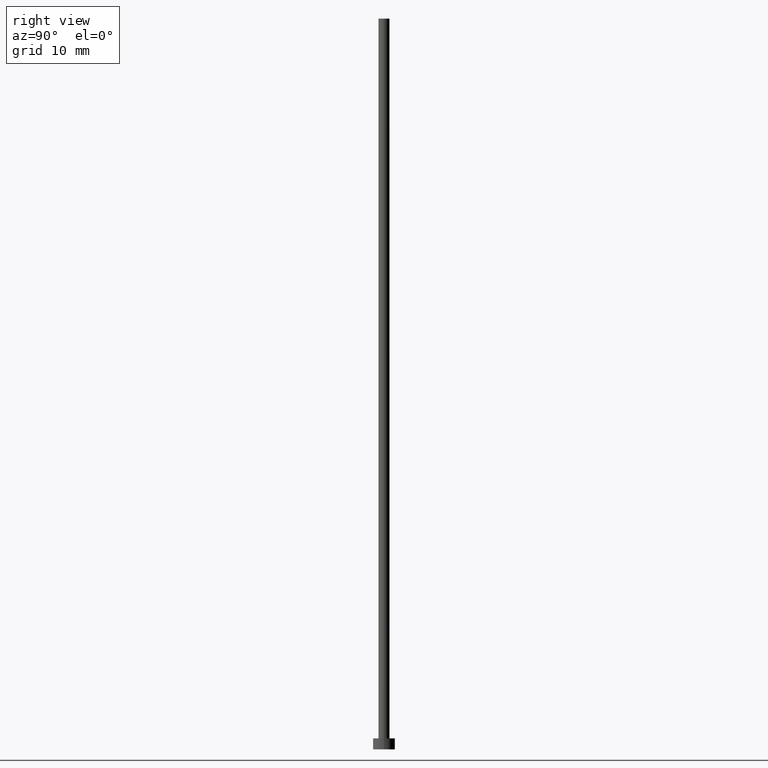
[diagram: clean part render]
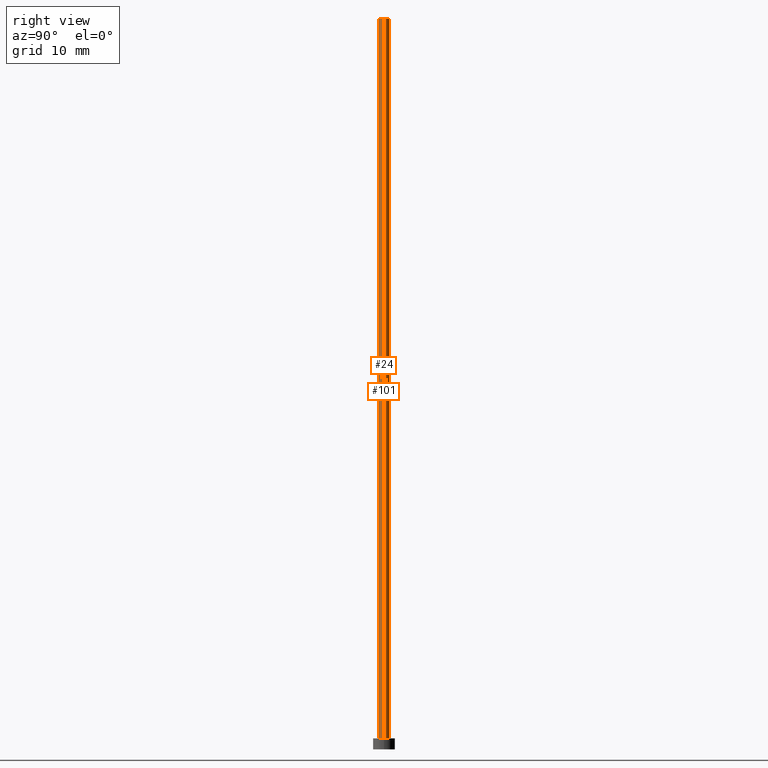
[diagram: same view with one multi-face feature highlighted, each face labeled with its STEP entity id]
A machine part, right view. The highlighted faces form ONE feature: a constant-radius fillet chain: 2 tangent blend faces with common blend radius 0.75 mm. The faces share edges in the B-rep.
Their STEP definitions:
[1] entity #24 (Cylinder):
#24 = ADVANCED_FACE ( 'NONE', ( #45 ), #26, .T. ) ;
#26 = CYLINDRICAL_SURFACE ( 'NONE', #188, 0.7500000000000001110 ) ;
#28 = DIRECTION ( 'NONE',  ( -0.000000000000000000, -0.000000000000000000, -1.000000000000000000 ) ) ;
#31 = DIRECTION ( 'NONE',  ( 1.000000000000000000, 0.000000000000000000, 0.000000000000000000 ) ) ;
#37 = VERTEX_POINT ( 'NONE', #178 ) ;
#45 = FACE_OUTER_BOUND ( 'NONE', #114, .T. ) ;
#46 = CARTESIAN_POINT ( 'NONE',  ( 0.000000000000000000, 0.000000000000000000, 100.0000000000000000 ) ) ;
#59 = ORIENTED_EDGE ( 'NONE', *, *, #168, .T. ) ;
#78 = CARTESIAN_POINT ( 'NONE',  ( -0.7500000000000001110, 0.000000000000000000, 100.0000000000000000 ) ) ;
#80 = DIRECTION ( 'NONE',  ( -0.000000000000000000, -0.000000000000000000, -1.000000000000000000 ) ) ;
#84 = DIRECTION ( 'NONE',  ( -0.000000000000000000, -0.000000000000000000, -1.000000000000000000 ) ) ;
#89 = CIRCLE ( 'NONE', #195, 0.7500000000000001110 ) ;
#100 = VECTOR ( 'NONE', #80, 1000.000000000000000 ) ;
#107 = CARTESIAN_POINT ( 'NONE',  ( 0.7500000000000001110, 9.184850993605150903E-17, 100.0000000000000000 ) ) ;
#109 = ORIENTED_EDGE ( 'NONE', *, *, #144, .T. ) ;
#114 = EDGE_LOOP ( 'NONE', ( #135, #220, #59, #109 ) ) ;
#116 = CARTESIAN_POINT ( 'NONE',  ( 0.000000000000000000, 0.000000000000000000, 1.500000000000000000 ) ) ;
#126 = DIRECTION ( 'NONE',  ( -1.000000000000000000, 0.000000000000000000, 0.000000000000000000 ) ) ;
#129 = LINE ( 'NONE', #107, #229 ) ;
#135 = ORIENTED_EDGE ( 'NONE', *, *, #174, .F. ) ;
#136 = DIRECTION ( 'NONE',  ( 0.000000000000000000, 0.000000000000000000, 1.000000000000000000 ) ) ;
#143 = VERTEX_POINT ( 'NONE', #179 ) ;
#144 = EDGE_CURVE ( 'NONE', #143, #163, #89, .T. ) ;
#146 = AXIS2_PLACEMENT_3D ( 'NONE', #238, #239, #31 ) ;
#162 = CARTESIAN_POINT ( 'NONE',  ( -0.7500000000000001110, 0.000000000000000000, 100.0000000000000000 ) ) ;
#163 = VERTEX_POINT ( 'NONE', #223 ) ;
#168 = EDGE_CURVE ( 'NONE', #169, #143, #184, .T. ) ;
#169 = VERTEX_POINT ( 'NONE', #162 ) ;
#174 = EDGE_CURVE ( 'NONE', #37, #163, #129, .T. ) ;
#178 = CARTESIAN_POINT ( 'NONE',  ( 0.7500000000000001110, 9.184850993605150903E-17, 100.0000000000000000 ) ) ;
#179 = CARTESIAN_POINT ( 'NONE',  ( -0.7500000000000001110, 0.000000000000000000, 1.500000000000000000 ) ) ;
#183 = CIRCLE ( 'NONE', #146, 0.7500000000000001110 ) ;
#184 = LINE ( 'NONE', #78, #100 ) ;
#186 = DIRECTION ( 'NONE',  ( 1.000000000000000000, 0.000000000000000000, 0.000000000000000000 ) ) ;
#188 = AXIS2_PLACEMENT_3D ( 'NONE', #46, #84, #126 ) ;
#195 = AXIS2_PLACEMENT_3D ( 'NONE', #116, #136, #186 ) ;
#207 = EDGE_CURVE ( 'NONE', #169, #37, #183, .T. ) ;
#220 = ORIENTED_EDGE ( 'NONE', *, *, #207, .F. ) ;
#223 = CARTESIAN_POINT ( 'NONE',  ( 0.7500000000000001110, 9.184850993605150903E-17, 1.500000000000000000 ) ) ;
#229 = VECTOR ( 'NONE', #28, 1000.000000000000000 ) ;
#238 = CARTESIAN_POINT ( 'NONE',  ( 0.000000000000000000, 0.000000000000000000, 100.0000000000000000 ) ) ;
#239 = DIRECTION ( 'NONE',  ( 0.000000000000000000, 0.000000000000000000, 1.000000000000000000 ) ) ;
[2] entity #101 (Cylinder):
#3 = DIRECTION ( 'NONE',  ( -0.000000000000000000, -0.000000000000000000, -1.000000000000000000 ) ) ;
#7 = AXIS2_PLACEMENT_3D ( 'NONE', #142, #76, #242 ) ;
#9 = DIRECTION ( 'NONE',  ( 0.000000000000000000, 0.000000000000000000, 1.000000000000000000 ) ) ;
#13 = DIRECTION ( 'NONE',  ( 1.000000000000000000, 0.000000000000000000, 0.000000000000000000 ) ) ;
#15 = DIRECTION ( 'NONE',  ( -1.000000000000000000, 0.000000000000000000, 0.000000000000000000 ) ) ;
#28 = DIRECTION ( 'NONE',  ( -0.000000000000000000, -0.000000000000000000, -1.000000000000000000 ) ) ;
#37 = VERTEX_POINT ( 'NONE', #178 ) ;
#47 = CIRCLE ( 'NONE', #182, 0.7500000000000001110 ) ;
#53 = EDGE_LOOP ( 'NONE', ( #233, #255, #88, #56 ) ) ;
#56 = ORIENTED_EDGE ( 'NONE', *, *, #168, .F. ) ;
#76 = DIRECTION ( 'NONE',  ( 0.000000000000000000, 0.000000000000000000, 1.000000000000000000 ) ) ;
#78 = CARTESIAN_POINT ( 'NONE',  ( -0.7500000000000001110, 0.000000000000000000, 100.0000000000000000 ) ) ;
#80 = DIRECTION ( 'NONE',  ( -0.000000000000000000, -0.000000000000000000, -1.000000000000000000 ) ) ;
#88 = ORIENTED_EDGE ( 'NONE', *, *, #219, .T. ) ;
#100 = VECTOR ( 'NONE', #80, 1000.000000000000000 ) ;
#101 = ADVANCED_FACE ( 'NONE', ( #201 ), #226, .T. ) ;
#107 = CARTESIAN_POINT ( 'NONE',  ( 0.7500000000000001110, 9.184850993605150903E-17, 100.0000000000000000 ) ) ;
#121 = CARTESIAN_POINT ( 'NONE',  ( 0.000000000000000000, 0.000000000000000000, 100.0000000000000000 ) ) ;
#129 = LINE ( 'NONE', #107, #229 ) ;
#142 = CARTESIAN_POINT ( 'NONE',  ( 0.000000000000000000, 0.000000000000000000, 1.500000000000000000 ) ) ;
#143 = VERTEX_POINT ( 'NONE', #179 ) ;
#162 = CARTESIAN_POINT ( 'NONE',  ( -0.7500000000000001110, 0.000000000000000000, 100.0000000000000000 ) ) ;
#163 = VERTEX_POINT ( 'NONE', #223 ) ;
#168 = EDGE_CURVE ( 'NONE', #169, #143, #184, .T. ) ;
#169 = VERTEX_POINT ( 'NONE', #162 ) ;
#174 = EDGE_CURVE ( 'NONE', #37, #163, #129, .T. ) ;
#178 = CARTESIAN_POINT ( 'NONE',  ( 0.7500000000000001110, 9.184850993605150903E-17, 100.0000000000000000 ) ) ;
#179 = CARTESIAN_POINT ( 'NONE',  ( -0.7500000000000001110, 0.000000000000000000, 1.500000000000000000 ) ) ;
#182 = AXIS2_PLACEMENT_3D ( 'NONE', #194, #9, #13 ) ;
#184 = LINE ( 'NONE', #78, #100 ) ;
#194 = CARTESIAN_POINT ( 'NONE',  ( 0.000000000000000000, 0.000000000000000000, 100.0000000000000000 ) ) ;
#201 = FACE_OUTER_BOUND ( 'NONE', #53, .T. ) ;
#203 = EDGE_CURVE ( 'NONE', #37, #169, #47, .T. ) ;
#219 = EDGE_CURVE ( 'NONE', #163, #143, #241, .T. ) ;
#221 = AXIS2_PLACEMENT_3D ( 'NONE', #121, #3, #15 ) ;
#223 = CARTESIAN_POINT ( 'NONE',  ( 0.7500000000000001110, 9.184850993605150903E-17, 1.500000000000000000 ) ) ;
#226 = CYLINDRICAL_SURFACE ( 'NONE', #221, 0.7500000000000001110 ) ;
#229 = VECTOR ( 'NONE', #28, 1000.000000000000000 ) ;
#233 = ORIENTED_EDGE ( 'NONE', *, *, #203, .F. ) ;
#241 = CIRCLE ( 'NONE', #7, 0.7500000000000001110 ) ;
#242 = DIRECTION ( 'NONE',  ( 1.000000000000000000, 0.000000000000000000, 0.000000000000000000 ) ) ;
#255 = ORIENTED_EDGE ( 'NONE', *, *, #174, .T. ) ;